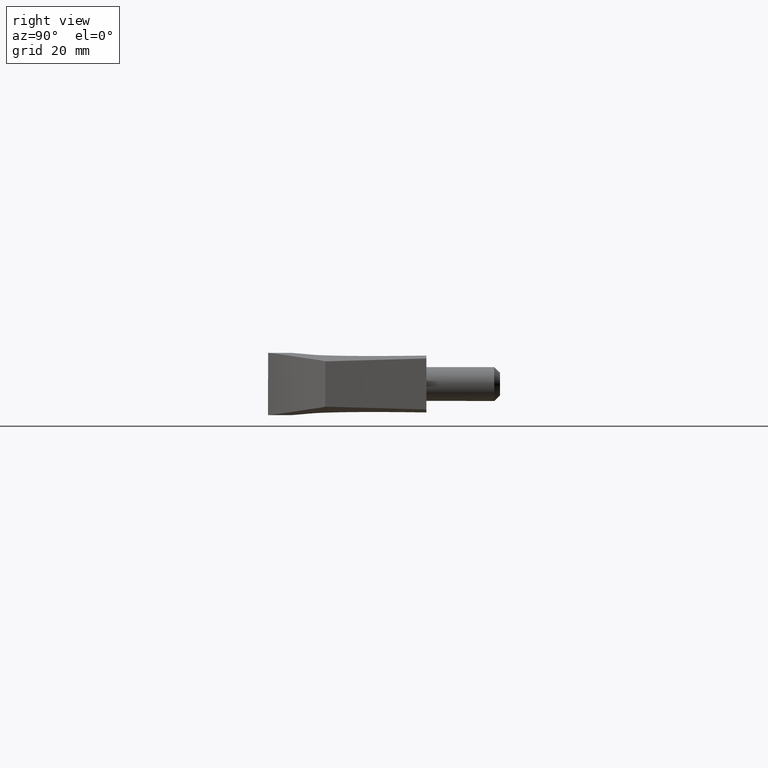
[diagram: clean part render]
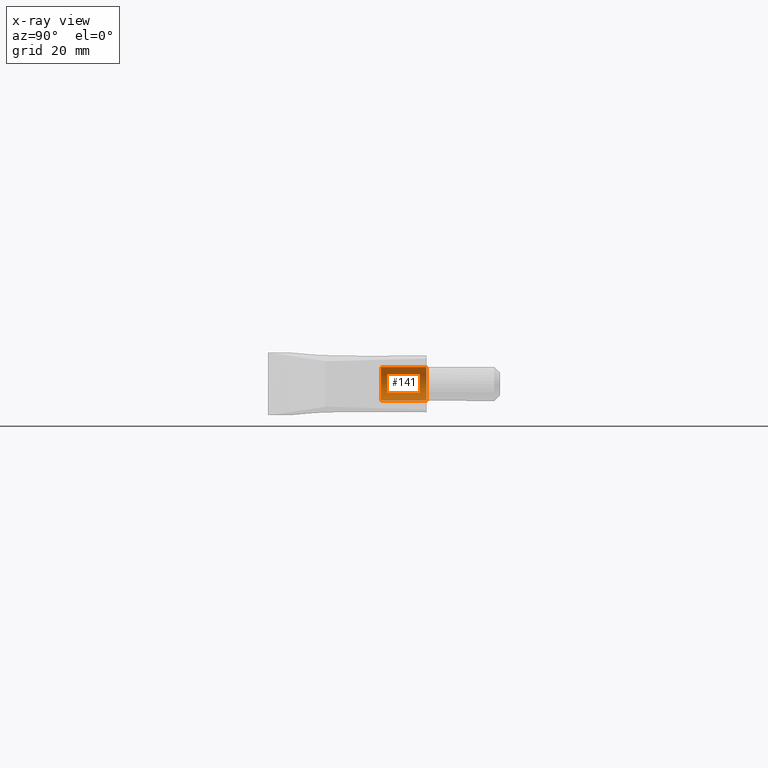
[diagram: x-ray — body ghosted, one internal face saturated and labeled with its STEP entity id]
A machine part, right view, then the same camera in x-ray: the body is ghosted and one INTERNAL B-rep face — a face not visible from any outside direction — is saturated and labeled: STEP entity #141.
In plain terms, the highlighted cylindrical surface (edge-blend (fillet) strip) has radius 3 mm, axis along (-0, -1, -0).
Its self-contained STEP definition (entity closure, byte-faithful):
#141=ADVANCED_FACE('',(#348),#347,.F.);
#347=CYLINDRICAL_SURFACE('',#1367,3.00000000000E+00);
#348=FACE_OUTER_BOUND('',#1368,.T.);
#1364=CARTESIAN_POINT('',(-5.10000000000E+01,-4.36445919411E-15,8.20000000000E+00));
#1365=DIRECTION('',(-1.07378739382E-14,-1.12728726745E-15,1.00000000000E+00));
#1366=DIRECTION('',(-1.18034234657E-01,9.93009526364E-01,-1.48029736617E-16));
#1367=AXIS2_PLACEMENT_3D('',#1364,#1365,#1366);
#1368=EDGE_LOOP('',(#1494,#1495,#1496,#1497));
#1494=ORIENTED_EDGE('',*,*,#1538,.T.);
#1495=ORIENTED_EDGE('',*,*,#1575,.T.);
#1496=ORIENTED_EDGE('',*,*,#1551,.F.);
#1497=ORIENTED_EDGE('',*,*,#1576,.F.);
#1538=EDGE_CURVE('',#1744,#1736,#1745,.T.);
#1551=EDGE_CURVE('',#1827,#1834,#1835,.T.);
#1575=EDGE_CURVE('',#1736,#1834,#1992,.T.);
#1576=EDGE_CURVE('',#1744,#1827,#1998,.T.);
#1736=VERTEX_POINT('',#2120);
#1744=VERTEX_POINT('',#2126);
#1745=CIRCLE('',#2130,3.00000000000E+00);
#1827=VERTEX_POINT('',#2183);
#1834=VERTEX_POINT('',#2188);
#1835=CIRCLE('',#2192,3.00000000000E+00);
#1992=(BOUNDED_CURVE() B_SPLINE_CURVE(1,(#2707,#2708),.UNSPECIFIED.,.F.,.F.) B_SPLINE_CURVE_WITH_KNOTS((2,2),(8.33333366442E-02,9.16666667899E-01),.UNSPECIFIED.) CURVE() GEOMETRIC_REPRESENTATION_ITEM() RATIONAL_B_SPLINE_CURVE((1.00000000000E+00,1.00000000000E+00)) REPRESENTATION_ITEM('') );
#1998=(BOUNDED_CURVE() B_SPLINE_CURVE(1,(#2709,#2710),.UNSPECIFIED.,.F.,.F.) B_SPLINE_CURVE_WITH_KNOTS((2,2),(8.33333333333E-02,9.16666666667E-01),.UNSPECIFIED.) CURVE() GEOMETRIC_REPRESENTATION_ITEM() RATIONAL_B_SPLINE_CURVE((7.50000000000E-01,7.50000000000E-01)) REPRESENTATION_ITEM('') );
#2120=CARTESIAN_POINT('',(-5.13541016146E+01,2.97902870858E+00,8.51649621022E-17));
#2126=CARTESIAN_POINT('',(-5.06453824164E+01,-2.97896733272E+00,4.27157168356E-17));
#2127=CARTESIAN_POINT('',(-5.10000000000E+01,9.10382880193E-15,6.38780595480E-17));
#2128=DIRECTION('',(2.37205620257E-16,3.53409805571E-17,-1.00000000000E+00));
#2129=DIRECTION('',(1.00000000000E+00,-2.83106871279E-15,2.37205620257E-16));
#2130=AXIS2_PLACEMENT_3D('',#2127,#2128,#2129);
#2183=CARTESIAN_POINT('',(-5.06453824164E+01,-2.97896733272E+00,8.00000000000E+00));
#2188=CARTESIAN_POINT('',(-5.13541016146E+01,2.97902870858E+00,8.00000000000E+00));
#2189=CARTESIAN_POINT('',(-5.10000000000E+01,0.00000000000E+00,8.00000000000E+00));
#2190=DIRECTION('',(0.00000000000E+00,-0.00000000000E+00,-1.00000000000E+00));
#2191=DIRECTION('',(1.00000000000E+00,-1.11022302463E-16,0.00000000000E+00));
#2192=AXIS2_PLACEMENT_3D('',#2189,#2190,#2191);
#2707=CARTESIAN_POINT('',(-5.13541027040E+01,2.97902857909E+00,3.17843081854E-08));
#2708=CARTESIAN_POINT('',(-5.13541027040E+01,2.97902857909E+00,8.00000001183E+00));
#2709=CARTESIAN_POINT('',(-5.06458972960E+01,-2.97902857909E+00,-3.84877315203E-15));
#2710=CARTESIAN_POINT('',(-5.06458972960E+01,-2.97902857909E+00,8.00000000000E+00));